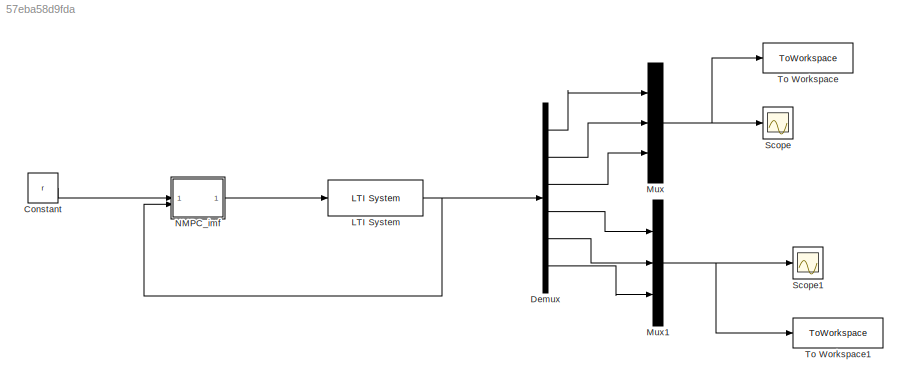
MODEL slx_57eba58d9fda
KIND model
CONFIG AbsTol = auto
CONFIG EnableMultiTasking = off
CONFIG FixedStep = auto
CONFIG MaxStep = auto
CONFIG MinStep = auto
CONFIG RelTol = 1e-3
CONFIG SampleTimeConstraint = Unconstrained
CONFIG SolverName = VariableStepAuto
CONFIG StartTime = 0.0
CONFIG StopTime = Tfin
BLOCK [Constant] Constant
  Value = r
BLOCK [Demux] Demux
  Outputs = 6
BLOCK [Reference] LTI System  REF=cstblocks/LTI System
  SourceBlock = cstblocks/LTI System
  SourceType = LTI Block
BLOCK [Mux] Mux
  DisplayOption = bar
  Inputs = 3
BLOCK [Mux] Mux1
  DisplayOption = bar
  Inputs = 3
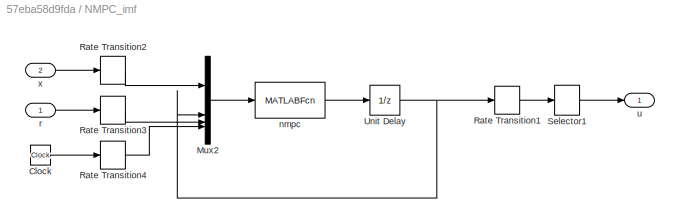
BLOCK [SubSystem] NMPC_imf
BLOCK [Clock] NMPC_imf/Clock
BLOCK [Mux] NMPC_imf/Mux2
  DisplayOption = bar
BLOCK [RateTransition] NMPC_imf/Rate Transition1
  OutPortSampleTime = K.Ts
BLOCK [RateTransition] NMPC_imf/Rate Transition2
  OutPortSampleTime = K.Ts
BLOCK [RateTransition] NMPC_imf/Rate Transition3
  OutPortSampleTime = K.Ts
BLOCK [RateTransition] NMPC_imf/Rate Transition4
  OutPortSampleTime = K.Ts
BLOCK [Selector] NMPC_imf/Selector1
  IndexOptions = Index vector (dialog)
  Indices = 1:K.nu
  InputPortWidth = K.nc
  OutputSizes = 1
BLOCK [UnitDelay] NMPC_imf/Unit Delay
  HasFrameUpgradeWarning = on
  InitialCondition = zeros(K.nc,1)
  NameLocation = top
  SampleTime = K.Ts
BLOCK [MATLABFcn] NMPC_imf/nmpc
  MATLABFcn = nmpc_st2(K,u(1:K.nx),u(K.nx+1:K.nx+K.nc),u(K.nx+K.nc+1:end-1),u(end))
  OutputDimensions = K.nc
BLOCK [Inport] NMPC_imf/r
BLOCK [Outport] NMPC_imf/u
  PortDimensions = K.nu
BLOCK [Inport] NMPC_imf/x
  Port = 2
BLOCK [Scope] Scope
  Floating = off
  NumInputPorts = 1
  ScopeSpecificationString = Simulink.scopes.TimeScopeBlockCfg('CurrentConfiguration', extmgr.ConfigurationSet(extmgr.Configuration('Core','General UI',true),extmgr.Configuration('Core','Source UI',true),extmgr.Configuration('Sources','WiredSimulink',true),extmgr.Configuration('Visuals','Time Domain',true,'SerializedDisplays',{struct('MinYLimReal','-9.04331','MaxYLimReal','56.56127','YLabelReal','','MinYLimMag','0.00000','Max...<+1351ch>
BLOCK [Scope] Scope1
  Floating = off
  NumInputPorts = 1
  ScopeSpecificationString = Simulink.scopes.TimeScopeBlockCfg('CurrentConfiguration', extmgr.ConfigurationSet(extmgr.Configuration('Core','General UI',true),extmgr.Configuration('Core','Source UI',true),extmgr.Configuration('Sources','WiredSimulink',true,'DataLoggingVariableName','ScopeData1'),extmgr.Configuration('Visuals','Time Domain',true,'SerializedDisplays',{struct('MinYLimReal','-0.76683','MaxYLimReal','0.12251','YLab...<+1386ch>
BLOCK [ToWorkspace] To Workspace
  FixptAsFi = on
  MaxDataPoints = inf
  SampleTime = -1
  SaveFormat = Timeseries
  VariableName = output
BLOCK [ToWorkspace] To Workspace1
  FixptAsFi = on
  MaxDataPoints = inf
  SampleTime = -1
  SaveFormat = Timeseries
  VariableName = output_2
LINE Constant:1 -> NMPC_imf:1
LINE Demux:1 -> Mux:1
LINE Demux:2 -> Mux:2
LINE Demux:3 -> Mux:3
LINE Demux:4 -> Mux1:1
LINE Demux:5 -> Mux1:2
LINE Demux:6 -> Mux1:3
NET LTI System:1 -> Demux:1, NMPC_imf:2
NET Mux1:1 -> Scope1:1, To Workspace1:1
NET Mux:1 -> Scope:1, To Workspace:1
LINE NMPC_imf/Clock:1 -> NMPC_imf/Rate Transition4:1
LINE NMPC_imf/Mux2:1 -> NMPC_imf/nmpc:1
LINE NMPC_imf/Rate Transition1:1 -> NMPC_imf/Selector1:1
LINE NMPC_imf/Rate Transition2:1 -> NMPC_imf/Mux2:1
LINE NMPC_imf/Rate Transition3:1 -> NMPC_imf/Mux2:3
LINE NMPC_imf/Rate Transition4:1 -> NMPC_imf/Mux2:4
LINE NMPC_imf/Selector1:1 -> NMPC_imf/u:1
NET NMPC_imf/Unit Delay:1 -> NMPC_imf/Mux2:2, NMPC_imf/Rate Transition1:1
LINE NMPC_imf/nmpc:1 -> NMPC_imf/Unit Delay:1
LINE NMPC_imf/r:1 -> NMPC_imf/Rate Transition3:1
LINE NMPC_imf/x:1 -> NMPC_imf/Rate Transition2:1
LINE NMPC_imf:1 -> LTI System:1
note: NET lines group one-source signal fan-out (src -> all destinations, sorted); 1:1 wires keep LINE
